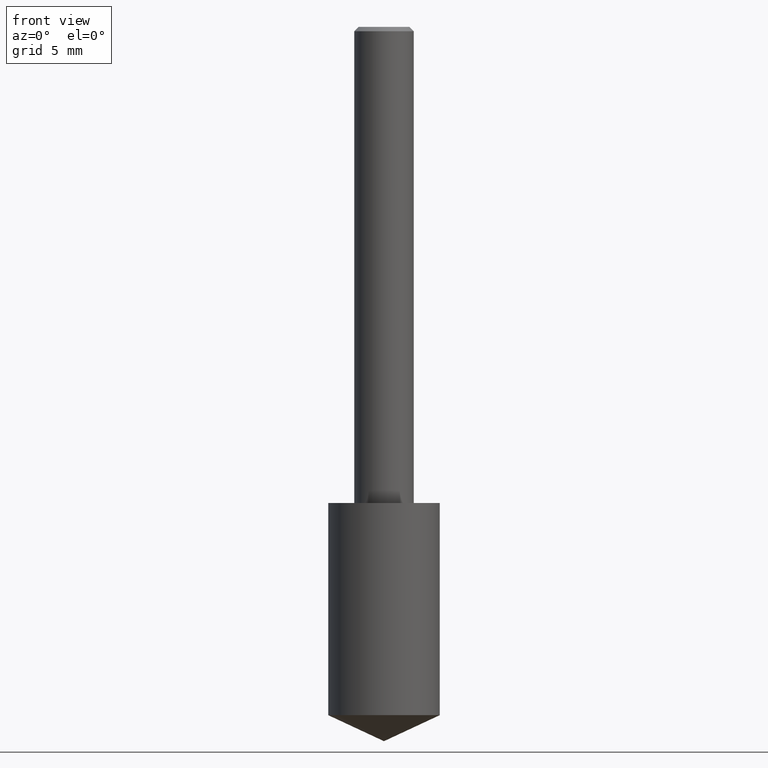
[diagram: clean part render]
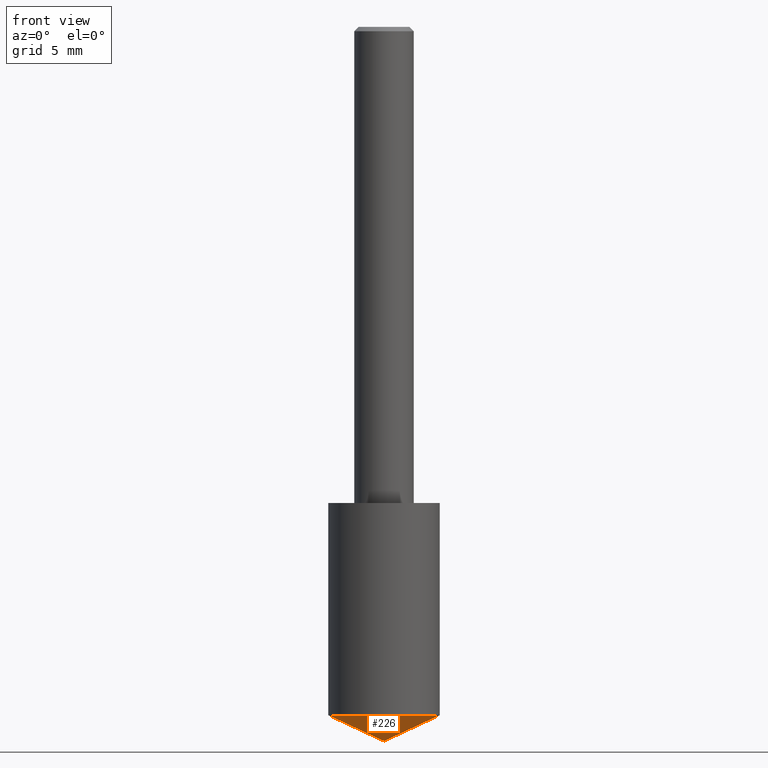
[diagram: same view with one face highlighted and labeled with its STEP entity id]
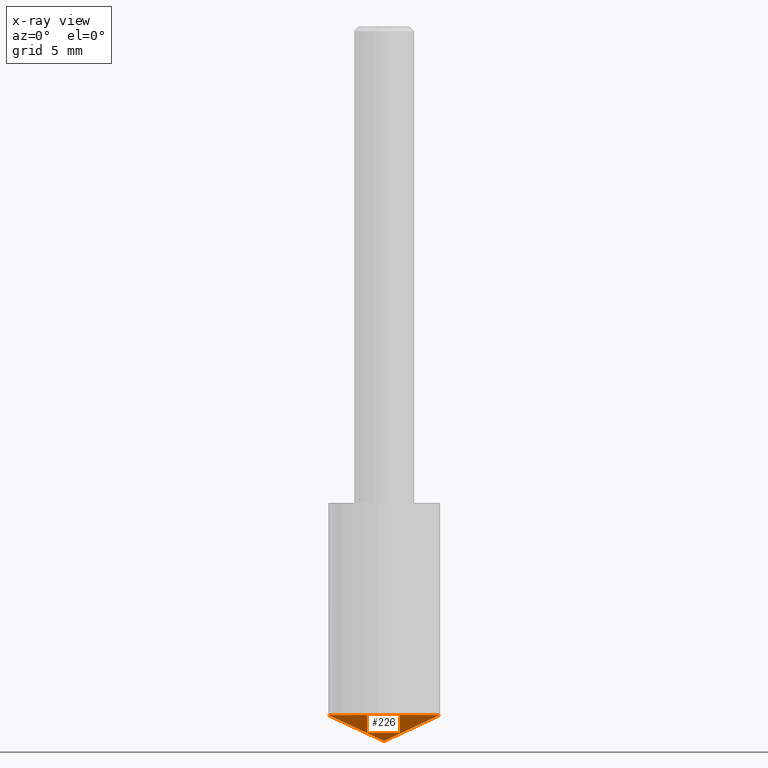
[diagram: x-ray of the same camera — body ghosted, the highlighted face saturated]
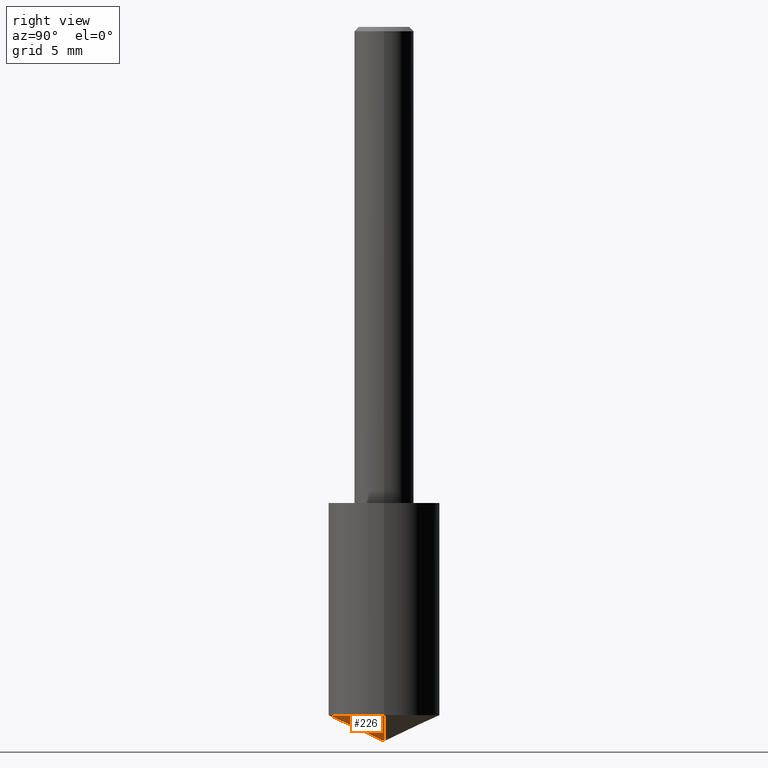
[diagram: same view with one face highlighted and labeled with its STEP entity id]
A machine part, front view. The second image highlights one B-rep face of the part: STEP entity #226.
The next image is the same camera in x-ray: the body ghosted, the highlighted face saturated — about 0% of this face is hidden behind the body in this view.
A second angle (right view) of the same face is appended — the face is thin or edge-on in the first view.
In plain terms, the highlighted conical surface has half-angle 65 deg.
Its self-contained STEP definition (entity closure, byte-faithful):
#1 = CARTESIAN_POINT ( 'NONE',  ( 3.668203209277704895E-29, -5.237222008264718177E-15, -1.500000000000000222 ) ) ;
#13 = VECTOR ( 'NONE', #217, 39.37007874015748854 ) ;
#15 = EDGE_LOOP ( 'NONE', ( #331, #253, #72 ) ) ;
#25 = LINE ( 'NONE', #56, #13 ) ;
#38 = DIRECTION ( 'NONE',  ( -2.445468806185136597E-29, 3.491481338843145583E-15, 1.000000000000000000 ) ) ;
#56 = CARTESIAN_POINT ( 'NONE',  ( 3.668203209277704895E-29, -5.237222008264718177E-15, -1.500000000000000222 ) ) ;
#60 = EDGE_CURVE ( 'NONE', #209, #326, #165, .T. ) ;
#72 = ORIENTED_EDGE ( 'NONE', *, *, #60, .F. ) ;
#75 = EDGE_CURVE ( 'NONE', #213, #209, #25, .T. ) ;
#76 = CARTESIAN_POINT ( 'NONE',  ( 3.668203209277704895E-29, -5.237222008264718177E-15, -1.500000000000000222 ) ) ;
#101 = EDGE_CURVE ( 'NONE', #213, #326, #104, .T. ) ;
#104 = LINE ( 'NONE', #76, #208 ) ;
#106 = AXIS2_PLACEMENT_3D ( 'NONE', #316, #38, #329 ) ;
#109 = CONICAL_SURFACE ( 'NONE', #191, 84.42940631927412198, 1.134464013796314896 ) ;
#136 = FACE_OUTER_BOUND ( 'NONE', #15, .T. ) ;
#156 = DIRECTION ( 'NONE',  ( -2.445468806185136597E-29, 3.491481338843145583E-15, 1.000000000000000000 ) ) ;
#165 = CIRCLE ( 'NONE', #106, 0.1171500000000000041 ) ;
#191 = AXIS2_PLACEMENT_3D ( 'NONE', #282, #156, #311 ) ;
#208 = VECTOR ( 'NONE', #321, 39.37007874015748854 ) ;
#209 = VERTEX_POINT ( 'NONE', #236 ) ;
#213 = VERTEX_POINT ( 'NONE', #1 ) ;
#217 = DIRECTION ( 'NONE',  ( -0.9063077870366501587, 7.915267918739014631E-15, 0.4226182617406987752 ) ) ;
#226 = ADVANCED_FACE ( 'NONE', ( #136 ), #109, .T. ) ;
#236 = CARTESIAN_POINT ( 'NONE',  ( -0.1171499999999999764, -4.214088752715654492E-15, -1.445372057847142067 ) ) ;
#253 = ORIENTED_EDGE ( 'NONE', *, *, #101, .T. ) ;
#282 = CARTESIAN_POINT ( 'NONE',  ( -9.261009624683002666E-28, 1.322226732217803884E-13, 37.87007874015748143 ) ) ;
#311 = DIRECTION ( 'NONE',  ( 1.000000000000000000, -6.982962677686266711E-15, 0.000000000000000000 ) ) ;
#316 = CARTESIAN_POINT ( 'NONE',  ( 3.534612280796804494E-29, -5.046489567658612481E-15, -1.445372057847142067 ) ) ;
#321 = DIRECTION ( 'NONE',  ( 0.9063077870366501587, -4.853149677051383523E-15, 0.4226182617406987752 ) ) ;
#325 = CARTESIAN_POINT ( 'NONE',  ( 0.1171499999999999764, -5.864543645349557452E-15, -1.445372057847142067 ) ) ;
#326 = VERTEX_POINT ( 'NONE', #325 ) ;
#329 = DIRECTION ( 'NONE',  ( 1.000000000000000000, -6.982962677686266711E-15, 0.000000000000000000 ) ) ;
#331 = ORIENTED_EDGE ( 'NONE', *, *, #75, .F. ) ;